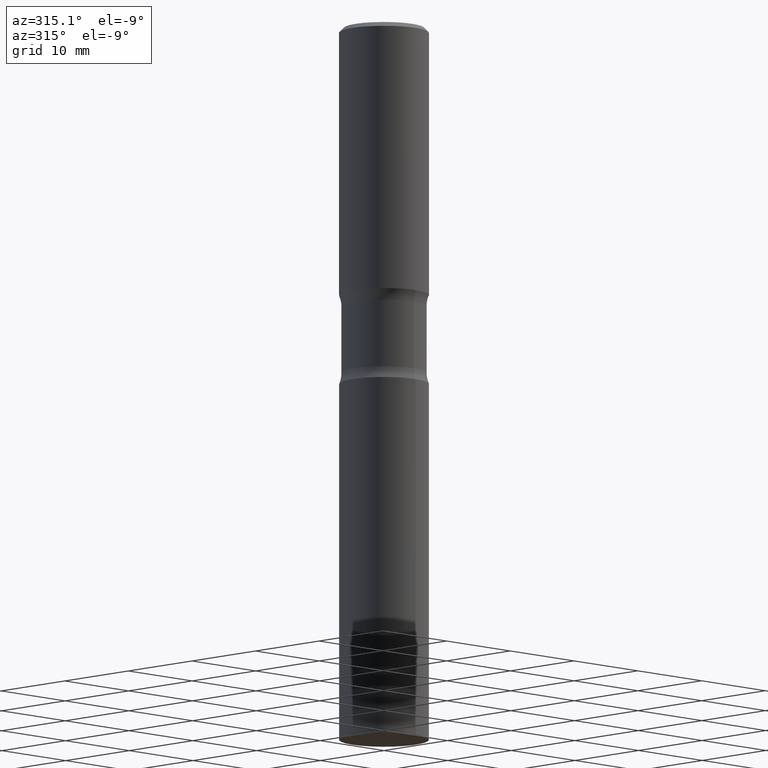
[diagram: clean part render]
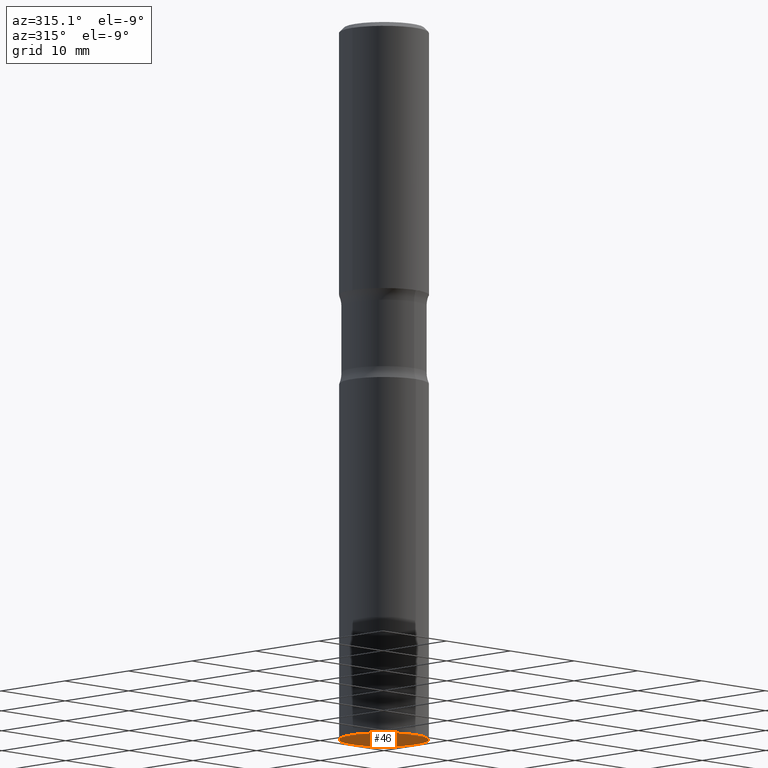
[diagram: same view with one face highlighted and labeled with its STEP entity id]
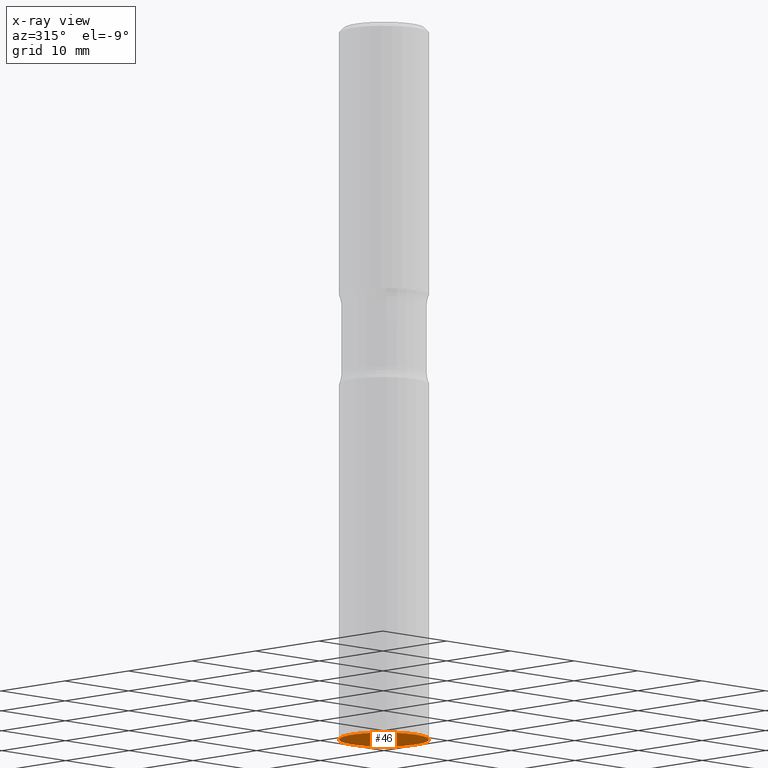
[diagram: x-ray of the same camera — body ghosted, the highlighted face saturated]
A machine part, auxiliary view. The second image highlights one B-rep face of the part: STEP entity #46.
The next image is the same camera in x-ray: the body ghosted, the highlighted face saturated — about 0% of this face is hidden behind the body in this view.
In plain terms, the highlighted planar face has unit normal (0, -0, -1).
Its self-contained STEP definition (entity closure, byte-faithful):
#38 = CIRCLE ( 'NONE', #133, 0.1968500000000000250 ) ;
#46 = ADVANCED_FACE ( 'NONE', ( #52 ), #140, .T. ) ;
#47 = CARTESIAN_POINT ( 'NONE',  ( 1.398703375343814783E-15, 0.1968499999999890060, -3.149600000000000843 ) ) ;
#52 = FACE_OUTER_BOUND ( 'NONE', #380, .T. ) ;
#58 = EDGE_CURVE ( 'NONE', #340, #305, #38, .T. ) ;
#61 = AXIS2_PLACEMENT_3D ( 'NONE', #142, #406, #257 ) ;
#66 = ORIENTED_EDGE ( 'NONE', *, *, #58, .F. ) ;
#108 = DIRECTION ( 'NONE',  ( -2.444304629429953350E-29, 3.493148506217393663E-15, 1.000000000000000000 ) ) ;
#109 = CIRCLE ( 'NONE', #61, 0.1968500000000000250 ) ;
#133 = AXIS2_PLACEMENT_3D ( 'NONE', #489, #108, #487 ) ;
#140 = PLANE ( 'NONE',  #347 ) ;
#142 = CARTESIAN_POINT ( 'NONE',  ( 7.698581860852581197E-29, -1.100202053518230452E-14, -3.149600000000000399 ) ) ;
#179 = DIRECTION ( 'NONE',  ( 2.444304629429953350E-29, -3.493148506217393663E-15, -1.000000000000000000 ) ) ;
#184 = CARTESIAN_POINT ( 'NONE',  ( 1.597802926082413196E-29, -1.973868320454601619E-14, -3.149599999999999511 ) ) ;
#185 = ORIENTED_EDGE ( 'NONE', *, *, #457, .F. ) ;
#257 = DIRECTION ( 'NONE',  ( -6.982962677686265133E-15, -1.000000000000000000, 2.775563112689116301E-15 ) ) ;
#305 = VERTEX_POINT ( 'NONE', #476 ) ;
#331 = DIRECTION ( 'NONE',  ( 6.982962677686265922E-15, 1.000000000000000000, -3.493148506217393663E-15 ) ) ;
#340 = VERTEX_POINT ( 'NONE', #47 ) ;
#347 = AXIS2_PLACEMENT_3D ( 'NONE', #184, #179, #331 ) ;
#380 = EDGE_LOOP ( 'NONE', ( #185, #66 ) ) ;
#406 = DIRECTION ( 'NONE',  ( -2.444304629429953350E-29, 3.493148506217393663E-15, 1.000000000000000000 ) ) ;
#457 = EDGE_CURVE ( 'NONE', #305, #340, #109, .T. ) ;
#476 = CARTESIAN_POINT ( 'NONE',  ( -1.374596203102464497E-15, -0.1968500000000110162, -3.149599999999999511 ) ) ;
#487 = DIRECTION ( 'NONE',  ( -6.982962677686265133E-15, -1.000000000000000000, 2.775563112689116301E-15 ) ) ;
#489 = CARTESIAN_POINT ( 'NONE',  ( 7.698581860852581197E-29, -1.100202053518230452E-14, -3.149600000000000399 ) ) ;